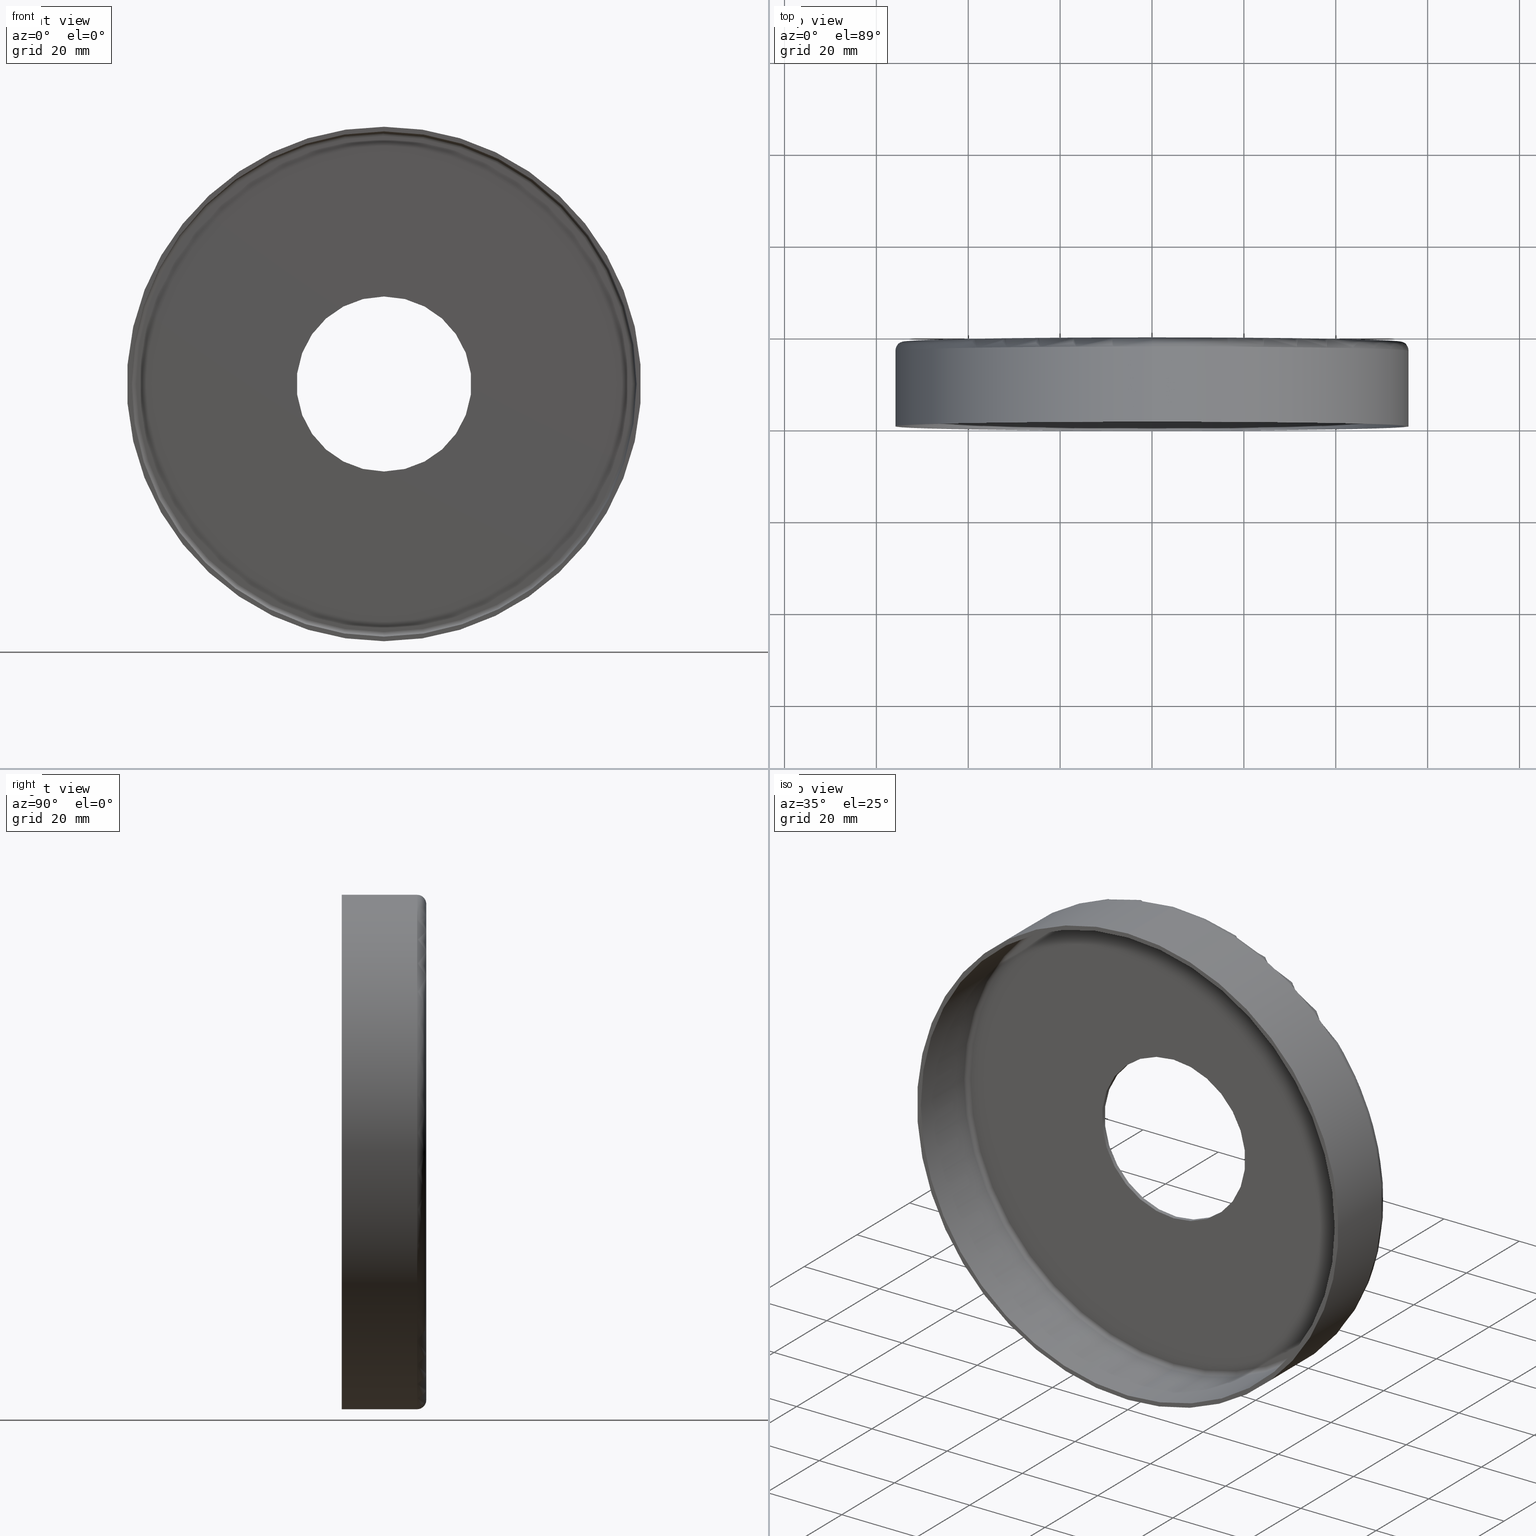
[diagram: canonical four-view strip — front | top / right | iso, engineering-drawing reading convention]
A machine part, canonical four-view strip (front | top / right | iso — engineering-drawing reading convention). The complete STEP part file that produces these views, byte-faithful:
ISO-10303-21;
HEADER;
FILE_DESCRIPTION (( 'STEP AP214' ),
    '1' );
FILE_NAME ('���. KRT511.STEP',
    '2014-06-03T10:32:17',
    ( '' ),
    ( '' ),
    'SwSTEP 2.0',
    'SolidWorks 2014',
    '' );
FILE_SCHEMA (( 'AUTOMOTIVE_DESIGN' ));
ENDSEC;

DATA;
#1 = DIRECTION ( 'NONE',  ( 0.0000000000000000000, 0.0000000000000000000, 1.000000000000000000 ) ) ;
#2 = EDGE_CURVE ( 'NONE', #162, #101, #78, .T. ) ;
#3 = FILL_AREA_STYLE ('',( #34 ) ) ;
#4 = DIRECTION ( 'NONE',  ( -1.000000000000000000, 0.0000000000000000000, 0.0000000000000000000 ) ) ;
#5 = ORIENTED_EDGE ( 'NONE', *, *, #18, .F. ) ;
#6 = VECTOR ( 'NONE', #133, 1000.000000000000000 ) ;
#7 = SURFACE_STYLE_USAGE ( .BOTH. , #255 ) ;
#8 = AXIS2_PLACEMENT_3D ( 'NONE', #95, #84, #377 ) ;
#9 = PRESENTATION_STYLE_ASSIGNMENT (( #7 ) ) ;
#10 = DIRECTION ( 'NONE',  ( 0.0000000000000000000, 1.000000000000000000, 0.0000000000000000000 ) ) ;
#11 = DIRECTION ( 'NONE',  ( 0.0000000000000000000, 0.0000000000000000000, 1.000000000000000000 ) ) ;
#12 = DIRECTION ( 'NONE',  ( 0.0000000000000000000, -0.0000000000000000000, 1.000000000000000000 ) ) ;
#13 = CIRCLE ( 'NONE', #47, 55.00000000000000700 ) ;
#14 = DIRECTION ( 'NONE',  ( 0.0000000000000000000, 0.0000000000000000000, 1.000000000000000000 ) ) ;
#15 = VERTEX_POINT ( 'NONE', #282 ) ;
#16 = DIRECTION ( 'NONE',  ( 0.0000000000000000000, 1.000000000000000000, 0.0000000000000000000 ) ) ;
#17 = APPLICATION_CONTEXT ( 'automotive_design' ) ;
#18 = EDGE_CURVE ( 'NONE', #182, #15, #235, .T. ) ;
#19 = ORIENTED_EDGE ( 'NONE', *, *, #143, .T. ) ;
#20 = VERTEX_POINT ( 'NONE', #274 ) ;
#21 = CIRCLE ( 'NONE', #205, 55.00000000000000700 ) ;
#22 = EDGE_LOOP ( 'NONE', ( #340, #261, #51, #141 ) ) ;
#23 = AXIS2_PLACEMENT_3D ( 'NONE', #256, #184, #62 ) ;
#24 = ORIENTED_EDGE ( 'NONE', *, *, #176, .T. ) ;
#25 = CIRCLE ( 'NONE', #267, 56.00000000000000700 ) ;
#26 = ORIENTED_EDGE ( 'NONE', *, *, #231, .F. ) ;
#27 = EDGE_CURVE ( 'NONE', #182, #277, #397, .T. ) ;
#28 = CARTESIAN_POINT ( 'NONE',  ( 0.0000000000000000000, 17.39999999999999900, 0.0000000000000000000 ) ) ;
#29 = CARTESIAN_POINT ( 'NONE',  ( 0.0000000000000000000, 0.0000000000000000000, 0.0000000000000000000 ) ) ;
#30 = FACE_OUTER_BOUND ( 'NONE', #175, .T. ) ;
#31 = ORIENTED_EDGE ( 'NONE', *, *, #236, .T. ) ;
#32 = CARTESIAN_POINT ( 'NONE',  ( 6.735557395310444200E-015, 18.39999999999999900, 55.00000000000000700 ) ) ;
#33 = DIRECTION ( 'NONE',  ( 1.000000000000000000, -0.0000000000000000000, 1.224646799147353200E-016 ) ) ;
#34 = FILL_AREA_STYLE_COLOUR ( '', #168 ) ;
#35 = DIRECTION ( 'NONE',  ( -0.0000000000000000000, 1.000000000000000000, -0.0000000000000000000 ) ) ;
#36 = CARTESIAN_POINT ( 'NONE',  ( 0.0000000000000000000, 0.0000000000000000000, 0.0000000000000000000 ) ) ;
#37 = AXIS2_PLACEMENT_3D ( 'NONE', #83, #215, #374 ) ;
#38 = CIRCLE ( 'NONE', #291, 1.000000000000000900 ) ;
#39 = VECTOR ( 'NONE', #89, 1000.000000000000000 ) ;
#40 = DIRECTION ( 'NONE',  ( 0.0000000000000000000, 0.0000000000000000000, 1.000000000000000000 ) ) ;
#41 = DIRECTION ( 'NONE',  ( -0.0000000000000000000, -1.000000000000000000, -0.0000000000000000000 ) ) ;
#42 = DIRECTION ( 'NONE',  ( 0.0000000000000000000, -0.0000000000000000000, 1.000000000000000000 ) ) ;
#43 = ORIENTED_EDGE ( 'NONE', *, *, #150, .F. ) ;
#44 = DIRECTION ( 'NONE',  ( 0.0000000000000000000, 1.000000000000000000, 0.0000000000000000000 ) ) ;
#45 = ORIENTED_EDGE ( 'NONE', *, *, #309, .T. ) ;
#46 = DIRECTION ( 'NONE',  ( 0.0000000000000000000, 0.0000000000000000000, 1.000000000000000000 ) ) ;
#47 = AXIS2_PLACEMENT_3D ( 'NONE', #290, #159, #338 ) ;
#48 = DIRECTION ( 'NONE',  ( 0.0000000000000000000, 1.000000000000000000, 0.0000000000000000000 ) ) ;
#49 = CIRCLE ( 'NONE', #271, 19.05000000000000100 ) ;
#50 = AXIS2_PLACEMENT_3D ( 'NONE', #127, #345, #154 ) ;
#51 = ORIENTED_EDGE ( 'NONE', *, *, #332, .T. ) ;
#52 = EDGE_CURVE ( 'NONE', #203, #293, #151, .T. ) ;
#53 = FACE_OUTER_BOUND ( 'NONE', #240, .T. ) ;
#54 = UNCERTAINTY_MEASURE_WITH_UNIT (LENGTH_MEASURE( 1.000000000000000100E-005 ), #252, 'distance_accuracy_value', 'NONE');
#55 = VECTOR ( 'NONE', #217, 1000.000000000000000 ) ;
#56 = AXIS2_PLACEMENT_3D ( 'NONE', #125, #10, #42 ) ;
#57 = ADVANCED_FACE ( 'NONE', ( #53 ), #191, .T. ) ;
#58 = ORIENTED_EDGE ( 'NONE', *, *, #236, .F. ) ;
#59 = CARTESIAN_POINT ( 'NONE',  ( 0.0000000000000000000, 18.39999999999999900, 19.05000000000000100 ) ) ;
#60 = EDGE_CURVE ( 'NONE', #20, #229, #373, .T. ) ;
#61 = VECTOR ( 'NONE', #259, 1000.000000000000000 ) ;
#62 = DIRECTION ( 'NONE',  ( 0.0000000000000000000, 0.0000000000000000000, -1.000000000000000000 ) ) ;
#63 = CARTESIAN_POINT ( 'NONE',  ( 2.332952152375708000E-015, 18.39999999999999900, -19.05000000000000100 ) ) ;
#64 =( NAMED_UNIT ( * ) SI_UNIT ( $, .STERADIAN. ) SOLID_ANGLE_UNIT ( ) );
#65 = AXIS2_PLACEMENT_3D ( 'NONE', #245, #129, #92 ) ;
#66 = LINE ( 'NONE', #289, #6 ) ;
#67 = VERTEX_POINT ( 'NONE', #394 ) ;
#68 = EDGE_CURVE ( 'NONE', #224, #273, #324, .T. ) ;
#69 = CARTESIAN_POINT ( 'NONE',  ( 6.674325055353075800E-015, 17.39999999999999900, -54.00000000000000700 ) ) ;
#70 = PLANE ( 'NONE',  #156 ) ;
#71 = DIRECTION ( 'NONE',  ( 0.0000000000000000000, 1.000000000000000000, 0.0000000000000000000 ) ) ;
#72 = CIRCLE ( 'NONE', #210, 55.00000000000000700 ) ;
#73 = AXIS2_PLACEMENT_3D ( 'NONE', #392, #337, #275 ) ;
#74 = EDGE_LOOP ( 'NONE', ( #367, #253 ) ) ;
#75 = LINE ( 'NONE', #322, #61 ) ;
#76 = FACE_OUTER_BOUND ( 'NONE', #298, .T. ) ;
#77 = AXIS2_PLACEMENT_3D ( 'NONE', #372, #376, #183 ) ;
#78 = CIRCLE ( 'NONE', #77, 55.00000000000000700 ) ;
#79 = PRODUCT_DEFINITION ( 'UNKNOWN', '', #286, #283 ) ;
#80 = ORIENTED_EDGE ( 'NONE', *, *, #328, .F. ) ;
#81 = ORIENTED_EDGE ( 'NONE', *, *, #332, .F. ) ;
#82 = CARTESIAN_POINT ( 'NONE',  ( 6.613092715395708300E-015, 16.39999999999999900, -54.00000000000000700 ) ) ;
#83 = CARTESIAN_POINT ( 'NONE',  ( 0.0000000000000000000, 18.39999999999999900, 0.0000000000000000000 ) ) ;
#84 = DIRECTION ( 'NONE',  ( 0.0000000000000000000, 1.000000000000000000, 0.0000000000000000000 ) ) ;
#85 = CARTESIAN_POINT ( 'NONE',  ( 0.0000000000000000000, 18.39999999999999900, 0.0000000000000000000 ) ) ;
#86 = FACE_OUTER_BOUND ( 'NONE', #233, .T. ) ;
#87 = CARTESIAN_POINT ( 'NONE',  ( 0.0000000000000000000, 16.39999999999999900, 0.0000000000000000000 ) ) ;
#88 = EDGE_LOOP ( 'NONE', ( #178, #327, #80, #204 ) ) ;
#89 = DIRECTION ( 'NONE',  ( -0.0000000000000000000, -1.000000000000000000, -0.0000000000000000000 ) ) ;
#90 = DIRECTION ( 'NONE',  ( -0.0000000000000000000, -1.000000000000000000, -0.0000000000000000000 ) ) ;
#91 = CARTESIAN_POINT ( 'NONE',  ( 0.0000000000000000000, 16.39999999999999900, -56.00000000000000700 ) ) ;
#92 = DIRECTION ( 'NONE',  ( 0.0000000000000000000, 0.0000000000000000000, 1.000000000000000000 ) ) ;
#93 = AXIS2_PLACEMENT_3D ( 'NONE', #220, #98, #352 ) ;
#94 = ORIENTED_EDGE ( 'NONE', *, *, #52, .F. ) ;
#95 = CARTESIAN_POINT ( 'NONE',  ( 0.0000000000000000000, 18.39999999999999900, 0.0000000000000000000 ) ) ;
#96 = CARTESIAN_POINT ( 'NONE',  ( 0.0000000000000000000, 16.39999999999999900, -55.00000000000000700 ) ) ;
#97 = EDGE_LOOP ( 'NONE', ( #354, #43, #24, #244 ) ) ;
#98 = DIRECTION ( 'NONE',  ( -0.0000000000000000000, -1.000000000000000000, -0.0000000000000000000 ) ) ;
#99 = PLANE ( 'NONE',  #300 ) ;
#100 = CYLINDRICAL_SURFACE ( 'NONE', #23, 55.00000000000000700 ) ;
#101 = VERTEX_POINT ( 'NONE', #118 ) ;
#102 = CARTESIAN_POINT ( 'NONE',  ( 0.0000000000000000000, 18.39999999999999900, 0.0000000000000000000 ) ) ;
#103 = APPLICATION_PROTOCOL_DEFINITION ( 'draft international standard', 'automotive_design', 1998, #299 ) ;
#104 = PRODUCT_DEFINITION_SHAPE ( 'NONE', 'NONE',  #79 ) ;
#105 = EDGE_CURVE ( 'NONE', #20, #248, #351, .T. ) ;
#106 = DIRECTION ( 'NONE',  ( 0.0000000000000000000, 0.0000000000000000000, 1.000000000000000000 ) ) ;
#107 = PRODUCT_CONTEXT ( 'NONE', #17, 'mechanical' ) ;
#108 = VERTEX_POINT ( 'NONE', #213 ) ;
#109 = AXIS2_PLACEMENT_3D ( 'NONE', #87, #199, #14 ) ;
#110 = MANIFOLD_SOLID_BREP ( '�����-��������1', #381 ) ;
#111 = ORIENTED_EDGE ( 'NONE', *, *, #312, .T. ) ;
#112 = EDGE_CURVE ( 'NONE', #20, #182, #212, .T. ) ;
#113 = ADVANCED_FACE ( 'NONE', ( #335 ), #145, .F. ) ;
#114 = FACE_OUTER_BOUND ( 'NONE', #331, .T. ) ;
#115 = AXIS2_PLACEMENT_3D ( 'NONE', #28, #242, #344 ) ;
#116 = ORIENTED_EDGE ( 'NONE', *, *, #328, .T. ) ;
#117 = ORIENTED_EDGE ( 'NONE', *, *, #112, .F. ) ;
#118 = CARTESIAN_POINT ( 'NONE',  ( 0.0000000000000000000, 0.0000000000000000000, -55.00000000000000700 ) ) ;
#119 = ORIENTED_EDGE ( 'NONE', *, *, #343, .T. ) ;
#120 = FILL_AREA_STYLE_COLOUR ( '', #272 ) ;
#121 =( NAMED_UNIT ( * ) PLANE_ANGLE_UNIT ( ) SI_UNIT ( $, .RADIAN. ) );
#122 = CARTESIAN_POINT ( 'NONE',  ( 6.858022075225179300E-015, 18.39999999999999900, 56.00000000000000700 ) ) ;
#123 = AXIS2_PLACEMENT_3D ( 'NONE', #385, #16, #46 ) ;
#124 = CARTESIAN_POINT ( 'NONE',  ( 0.0000000000000000000, 17.39999999999999900, 0.0000000000000000000 ) ) ;
#125 = CARTESIAN_POINT ( 'NONE',  ( 0.0000000000000000000, 17.39999999999999900, 0.0000000000000000000 ) ) ;
#126 = PRESENTATION_STYLE_ASSIGNMENT (( #266 ) ) ;
#127 = CARTESIAN_POINT ( 'NONE',  ( 0.0000000000000000000, 18.39999999999999900, 0.0000000000000000000 ) ) ;
#128 = CARTESIAN_POINT ( 'NONE',  ( 0.0000000000000000000, 16.39999999999999900, 0.0000000000000000000 ) ) ;
#129 = DIRECTION ( 'NONE',  ( 0.0000000000000000000, 1.000000000000000000, 0.0000000000000000000 ) ) ;
#130 = DIRECTION ( 'NONE',  ( -0.0000000000000000000, -1.000000000000000000, -0.0000000000000000000 ) ) ;
#131 = EDGE_LOOP ( 'NONE', ( #208, #295 ) ) ;
#132 = STYLED_ITEM ( 'NONE', ( #126 ), #239 ) ;
#133 = DIRECTION ( 'NONE',  ( -0.0000000000000000000, 1.000000000000000000, -0.0000000000000000000 ) ) ;
#134 = ORIENTED_EDGE ( 'NONE', *, *, #193, .T. ) ;
#135 = DIRECTION ( 'NONE',  ( 0.0000000000000000000, 1.000000000000000000, 0.0000000000000000000 ) ) ;
#136 = CARTESIAN_POINT ( 'NONE',  ( 0.0000000000000000000, 16.39999999999999900, 0.0000000000000000000 ) ) ;
#137 = CARTESIAN_POINT ( 'NONE',  ( 0.0000000000000000000, 0.0000000000000000000, 0.0000000000000000000 ) ) ;
#138 = EDGE_LOOP ( 'NONE', ( #134, #111 ) ) ;
#139 = FACE_OUTER_BOUND ( 'NONE', #306, .T. ) ;
#140 = PRESENTATION_LAYER_ASSIGNMENT (  '', '', ( #311 ) ) ;
#141 = ORIENTED_EDGE ( 'NONE', *, *, #68, .T. ) ;
#142 = VERTEX_POINT ( 'NONE', #96 ) ;
#143 = EDGE_CURVE ( 'NONE', #108, #142, #72, .T. ) ;
#144 = FACE_BOUND ( 'NONE', #138, .T. ) ;
#145 = CYLINDRICAL_SURFACE ( 'NONE', #93, 55.00000000000000700 ) ;
#146 = EDGE_CURVE ( 'NONE', #15, #248, #189, .T. ) ;
#147 = ORIENTED_EDGE ( 'NONE', *, *, #312, .F. ) ;
#148 = CARTESIAN_POINT ( 'NONE',  ( 0.0000000000000000000, 16.39999999999999900, 54.00000000000000700 ) ) ;
#149 = FACE_OUTER_BOUND ( 'NONE', #22, .T. ) ;
#150 = EDGE_CURVE ( 'NONE', #142, #108, #21, .T. ) ;
#151 = CIRCLE ( 'NONE', #37, 19.05000000000000100 ) ;
#152 = CARTESIAN_POINT ( 'NONE',  ( 6.858022075225179300E-015, 0.0000000000000000000, 56.00000000000000700 ) ) ;
#153 = DIRECTION ( 'NONE',  ( -0.0000000000000000000, -1.000000000000000000, -0.0000000000000000000 ) ) ;
#154 = DIRECTION ( 'NONE',  ( 0.0000000000000000000, 0.0000000000000000000, 1.000000000000000000 ) ) ;
#155 = DIRECTION ( 'NONE',  ( 0.0000000000000000000, 0.0000000000000000000, -1.000000000000000000 ) ) ;
#156 = AXIS2_PLACEMENT_3D ( 'NONE', #137, #160, #360 ) ;
#157 = CARTESIAN_POINT ( 'NONE',  ( 0.0000000000000000000, 18.39999999999999900, 0.0000000000000000000 ) ) ;
#158 = DIRECTION ( 'NONE',  ( 0.0000000000000000000, 0.0000000000000000000, 1.000000000000000000 ) ) ;
#159 = DIRECTION ( 'NONE',  ( 0.0000000000000000000, 1.000000000000000000, 0.0000000000000000000 ) ) ;
#160 = DIRECTION ( 'NONE',  ( 0.0000000000000000000, 1.000000000000000000, 0.0000000000000000000 ) ) ;
#161 = FACE_OUTER_BOUND ( 'NONE', #241, .T. ) ;
#162 = VERTEX_POINT ( 'NONE', #348 ) ;
#163 = AXIS2_PLACEMENT_3D ( 'NONE', #82, #209, #247 ) ;
#164 = ORIENTED_EDGE ( 'NONE', *, *, #171, .F. ) ;
#165 = UNCERTAINTY_MEASURE_WITH_UNIT (LENGTH_MEASURE( 1.000000000000000100E-005 ), #315, 'distance_accuracy_value', 'NONE');
#166 = CIRCLE ( 'NONE', #8, 19.05000000000000100 ) ;
#167 =( NAMED_UNIT ( * ) PLANE_ANGLE_UNIT ( ) SI_UNIT ( $, .RADIAN. ) );
#168 = COLOUR_RGB ( '',0.7921568627450980000, 0.8196078431372548800, 0.9333333333333333500 ) ;
#169 = EDGE_CURVE ( 'NONE', #182, #20, #25, .T. ) ;
#170 = ORIENTED_EDGE ( 'NONE', *, *, #112, .T. ) ;
#171 = EDGE_CURVE ( 'NONE', #67, #203, #66, .T. ) ;
#172 = LINE ( 'NONE', #398, #219 ) ;
#173 = ORIENTED_EDGE ( 'NONE', *, *, #231, .T. ) ;
#174 = ADVANCED_FACE ( 'NONE', ( #144, #76 ), #378, .F. ) ;
#175 = EDGE_LOOP ( 'NONE', ( #371, #119, #304, #214 ) ) ;
#176 = EDGE_CURVE ( 'NONE', #142, #101, #172, .T. ) ;
#177 = FACE_OUTER_BOUND ( 'NONE', #88, .T. ) ;
#178 = ORIENTED_EDGE ( 'NONE', *, *, #169, .F. ) ;
#179 = CARTESIAN_POINT ( 'NONE',  ( 0.0000000000000000000, 18.39999999999999900, -56.00000000000000700 ) ) ;
#180 = ADVANCED_FACE ( 'NONE', ( #30 ), #100, .F. ) ;
#181 = TOROIDAL_SURFACE ( 'NONE', #123, 54.00000000000000700, 1.000000000000000000 ) ;
#182 = VERTEX_POINT ( 'NONE', #91 ) ;
#183 = DIRECTION ( 'NONE',  ( 0.0000000000000000000, 0.0000000000000000000, 1.000000000000000000 ) ) ;
#184 = DIRECTION ( 'NONE',  ( -0.0000000000000000000, -1.000000000000000000, -0.0000000000000000000 ) ) ;
#185 = AXIS2_PLACEMENT_3D ( 'NONE', #254, #319, #250 ) ;
#186 = DIRECTION ( 'NONE',  ( 0.0000000000000000000, 0.0000000000000000000, -1.000000000000000000 ) ) ;
#187 = DIRECTION ( 'NONE',  ( 0.0000000000000000000, 1.000000000000000000, 0.0000000000000000000 ) ) ;
#188 = DIRECTION ( 'NONE',  ( 0.0000000000000000000, 0.0000000000000000000, 1.000000000000000000 ) ) ;
#189 = CIRCLE ( 'NONE', #388, 56.00000000000000700 ) ;
#190 = DIRECTION ( 'NONE',  ( -0.0000000000000000000, -1.000000000000000000, -0.0000000000000000000 ) ) ;
#191 = CYLINDRICAL_SURFACE ( 'NONE', #228, 56.00000000000000700 ) ;
#192 = CARTESIAN_POINT ( 'NONE',  ( 0.0000000000000000000, 16.39999999999999900, 0.0000000000000000000 ) ) ;
#193 = EDGE_CURVE ( 'NONE', #285, #67, #49, .T. ) ;
#194 = EDGE_LOOP ( 'NONE', ( #333, #94 ) ) ;
#195 = DIRECTION ( 'NONE',  ( -0.0000000000000000000, 1.000000000000000000, -0.0000000000000000000 ) ) ;
#196 = EDGE_CURVE ( 'NONE', #277, #229, #201, .T. ) ;
#197 = EDGE_LOOP ( 'NONE', ( #116, #366 ) ) ;
#198 = DIRECTION ( 'NONE',  ( 0.0000000000000000000, 1.000000000000000000, 0.0000000000000000000 ) ) ;
#199 = DIRECTION ( 'NONE',  ( 0.0000000000000000000, 1.000000000000000000, 0.0000000000000000000 ) ) ;
#200 = DIRECTION ( 'NONE',  ( 0.0000000000000000000, 0.0000000000000000000, 1.000000000000000000 ) ) ;
#201 = CIRCLE ( 'NONE', #395, 54.00000000000000700 ) ;
#202 = AXIS2_PLACEMENT_3D ( 'NONE', #382, #195, #11 ) ;
#203 = VERTEX_POINT ( 'NONE', #63 ) ;
#204 = ORIENTED_EDGE ( 'NONE', *, *, #60, .F. ) ;
#205 = AXIS2_PLACEMENT_3D ( 'NONE', #192, #221, #155 ) ;
#206 = ORIENTED_EDGE ( 'NONE', *, *, #171, .T. ) ;
#207 = ADVANCED_FACE ( 'NONE', ( #334, #356 ), #99, .T. ) ;
#208 = ORIENTED_EDGE ( 'NONE', *, *, #325, .T. ) ;
#209 = DIRECTION ( 'NONE',  ( 1.000000000000000000, -0.0000000000000000000, 1.224646799147353200E-016 ) ) ;
#210 = AXIS2_PLACEMENT_3D ( 'NONE', #284, #153, #292 ) ;
#211 = ADVANCED_FACE ( 'NONE', ( #139 ), #181, .F. ) ;
#212 = CIRCLE ( 'NONE', #185, 56.00000000000000700 ) ;
#213 = CARTESIAN_POINT ( 'NONE',  ( 6.735557395310444200E-015, 16.39999999999999900, 55.00000000000000700 ) ) ;
#214 = ORIENTED_EDGE ( 'NONE', *, *, #176, .F. ) ;
#215 = DIRECTION ( 'NONE',  ( 0.0000000000000000000, 1.000000000000000000, 0.0000000000000000000 ) ) ;
#216 = AXIS2_PLACEMENT_3D ( 'NONE', #124, #249, #188 ) ;
#217 = DIRECTION ( 'NONE',  ( -0.0000000000000000000, -1.000000000000000000, -0.0000000000000000000 ) ) ;
#218 = ORIENTED_EDGE ( 'NONE', *, *, #68, .F. ) ;
#219 = VECTOR ( 'NONE', #130, 1000.000000000000000 ) ;
#220 = CARTESIAN_POINT ( 'NONE',  ( 0.0000000000000000000, 18.39999999999999900, 0.0000000000000000000 ) ) ;
#221 = DIRECTION ( 'NONE',  ( -0.0000000000000000000, -1.000000000000000000, -0.0000000000000000000 ) ) ;
#222 = AXIS2_PLACEMENT_3D ( 'NONE', #393, #350, #1 ) ;
#223 =( NAMED_UNIT ( * ) PLANE_ANGLE_UNIT ( ) SI_UNIT ( $, .RADIAN. ) );
#224 = VERTEX_POINT ( 'NONE', #296 ) ;
#225 = ORIENTED_EDGE ( 'NONE', *, *, #146, .T. ) ;
#226 = ADVANCED_FACE ( 'NONE', ( #177 ), #260, .T. ) ;
#227 = TOROIDAL_SURFACE ( 'NONE', #109, 54.00000000000000700, 1.000000000000000000 ) ;
#228 = AXIS2_PLACEMENT_3D ( 'NONE', #85, #314, #336 ) ;
#229 = VERTEX_POINT ( 'NONE', #358 ) ;
#230 = ORIENTED_EDGE ( 'NONE', *, *, #196, .F. ) ;
#231 = EDGE_CURVE ( 'NONE', #285, #293, #75, .T. ) ;
#232 = AXIS2_PLACEMENT_3D ( 'NONE', #148, #4, #316 ) ;
#233 = EDGE_LOOP ( 'NONE', ( #147, #206, #391, #26 ) ) ;
#234 = FACE_OUTER_BOUND ( 'NONE', #379, .T. ) ;
#235 = LINE ( 'NONE', #179, #39 ) ;
#236 = EDGE_CURVE ( 'NONE', #273, #224, #269, .T. ) ;
#237 = AXIS2_PLACEMENT_3D ( 'NONE', #29, #263, #301 ) ;
#238 = ADVANCED_FACE ( 'NONE', ( #339, #349 ), #70, .F. ) ;
#239 = ADVANCED_BREP_SHAPE_REPRESENTATION ( '�. KRT511', ( #110, #237 ), #362 ) ;
#240 = EDGE_LOOP ( 'NONE', ( #279, #389, #264, #5 ) ) ;
#241 = EDGE_LOOP ( 'NONE', ( #164, #270, #173, #347 ) ) ;
#242 = DIRECTION ( 'NONE',  ( 0.0000000000000000000, 1.000000000000000000, 0.0000000000000000000 ) ) ;
#243 = ADVANCED_FACE ( 'NONE', ( #86 ), #265, .F. ) ;
#244 = ORIENTED_EDGE ( 'NONE', *, *, #2, .F. ) ;
#245 = CARTESIAN_POINT ( 'NONE',  ( 0.0000000000000000000, 16.39999999999999900, 0.0000000000000000000 ) ) ;
#246 = CYLINDRICAL_SURFACE ( 'NONE', #305, 56.00000000000000700 ) ;
#247 = DIRECTION ( 'NONE',  ( 1.224646799147353500E-016, 0.0000000000000000000, -1.000000000000000000 ) ) ;
#248 = VERTEX_POINT ( 'NONE', #152 ) ;
#249 = DIRECTION ( 'NONE',  ( 0.0000000000000000000, 1.000000000000000000, 0.0000000000000000000 ) ) ;
#250 = DIRECTION ( 'NONE',  ( 0.0000000000000000000, 0.0000000000000000000, 1.000000000000000000 ) ) ;
#251 = DIRECTION ( 'NONE',  ( 0.0000000000000000000, 0.0000000000000000000, 1.000000000000000000 ) ) ;
#252 =( LENGTH_UNIT ( ) NAMED_UNIT ( * ) SI_UNIT ( .MILLI., .METRE. ) );
#253 = ORIENTED_EDGE ( 'NONE', *, *, #294, .F. ) ;
#254 = CARTESIAN_POINT ( 'NONE',  ( 0.0000000000000000000, 16.39999999999999900, 0.0000000000000000000 ) ) ;
#255 = SURFACE_SIDE_STYLE ('',( #364 ) ) ;
#256 = CARTESIAN_POINT ( 'NONE',  ( 0.0000000000000000000, 18.39999999999999900, 0.0000000000000000000 ) ) ;
#257 =( GEOMETRIC_REPRESENTATION_CONTEXT ( 3 ) GLOBAL_UNCERTAINTY_ASSIGNED_CONTEXT ( ( #54 ) ) GLOBAL_UNIT_ASSIGNED_CONTEXT ( ( #252, #223, #64 ) ) REPRESENTATION_CONTEXT ( 'NONE', 'WORKASPACE' ) );
#258 = PRESENTATION_LAYER_ASSIGNMENT (  '', '', ( #132 ) ) ;
#259 = DIRECTION ( 'NONE',  ( -0.0000000000000000000, 1.000000000000000000, -0.0000000000000000000 ) ) ;
#260 = TOROIDAL_SURFACE ( 'NONE', #280, 54.00000000000000700, 2.000000000000000000 ) ;
#261 = ORIENTED_EDGE ( 'NONE', *, *, #150, .T. ) ;
#262 = CARTESIAN_POINT ( 'NONE',  ( 0.0000000000000000000, 17.39999999999999900, 0.0000000000000000000 ) ) ;
#263 = DIRECTION ( 'NONE',  ( 0.0000000000000000000, 0.0000000000000000000, 1.000000000000000000 ) ) ;
#264 = ORIENTED_EDGE ( 'NONE', *, *, #294, .T. ) ;
#265 = CYLINDRICAL_SURFACE ( 'NONE', #202, 19.05000000000000100 ) ;
#266 = SURFACE_STYLE_USAGE ( .BOTH. , #302 ) ;
#267 = AXIS2_PLACEMENT_3D ( 'NONE', #128, #190, #317 ) ;
#268 = VECTOR ( 'NONE', #41, 1000.000000000000000 ) ;
#269 = CIRCLE ( 'NONE', #370, 54.00000000000000700 ) ;
#270 = ORIENTED_EDGE ( 'NONE', *, *, #193, .F. ) ;
#271 = AXIS2_PLACEMENT_3D ( 'NONE', #355, #135, #158 ) ;
#272 = COLOUR_RGB ( '',0.7921568627450980000, 0.8196078431372548800, 0.9333333333333333500 ) ;
#273 = VERTEX_POINT ( 'NONE', #69 ) ;
#274 = CARTESIAN_POINT ( 'NONE',  ( 6.858022075225179300E-015, 16.39999999999999900, 56.00000000000000700 ) ) ;
#275 = DIRECTION ( 'NONE',  ( 0.0000000000000000000, 0.0000000000000000000, 1.000000000000000000 ) ) ;
#276 = EDGE_CURVE ( 'NONE', #293, #203, #166, .T. ) ;
#277 = VERTEX_POINT ( 'NONE', #297 ) ;
#278 = ADVANCED_FACE ( 'NONE', ( #161 ), #369, .F. ) ;
#279 = ORIENTED_EDGE ( 'NONE', *, *, #169, .T. ) ;
#280 = AXIS2_PLACEMENT_3D ( 'NONE', #136, #48, #200 ) ;
#281 = CARTESIAN_POINT ( 'NONE',  ( 0.0000000000000000000, 18.39999999999999900, 0.0000000000000000000 ) ) ;
#282 = CARTESIAN_POINT ( 'NONE',  ( 0.0000000000000000000, 0.0000000000000000000, -56.00000000000000700 ) ) ;
#283 = PRODUCT_DEFINITION_CONTEXT ( 'detailed design', #299, 'design' ) ;
#284 = CARTESIAN_POINT ( 'NONE',  ( 0.0000000000000000000, 16.39999999999999900, 0.0000000000000000000 ) ) ;
#285 = VERTEX_POINT ( 'NONE', #384 ) ;
#286 = PRODUCT_DEFINITION_FORMATION_WITH_SPECIFIED_SOURCE ( 'ANY', '', #368, .NOT_KNOWN. ) ;
#287 = CARTESIAN_POINT ( 'NONE',  ( 0.0000000000000000000, 0.0000000000000000000, 0.0000000000000000000 ) ) ;
#288 = LINE ( 'NONE', #32, #55 ) ;
#289 = CARTESIAN_POINT ( 'NONE',  ( 2.332952152375708000E-015, 0.0000000000000000000, -19.05000000000000100 ) ) ;
#290 = CARTESIAN_POINT ( 'NONE',  ( 0.0000000000000000000, 0.0000000000000000000, 0.0000000000000000000 ) ) ;
#291 = AXIS2_PLACEMENT_3D ( 'NONE', #380, #33, #342 ) ;
#292 = DIRECTION ( 'NONE',  ( 0.0000000000000000000, 0.0000000000000000000, -1.000000000000000000 ) ) ;
#293 = VERTEX_POINT ( 'NONE', #59 ) ;
#294 = EDGE_CURVE ( 'NONE', #248, #15, #386, .T. ) ;
#295 = ORIENTED_EDGE ( 'NONE', *, *, #2, .T. ) ;
#296 = CARTESIAN_POINT ( 'NONE',  ( 0.0000000000000000000, 17.39999999999999900, 54.00000000000000700 ) ) ;
#297 = CARTESIAN_POINT ( 'NONE',  ( 6.735557395310443400E-015, 18.39999999999999900, -54.00000000000000700 ) ) ;
#298 = EDGE_LOOP ( 'NONE', ( #218, #58 ) ) ;
#299 = APPLICATION_CONTEXT ( 'automotive_design' ) ;
#300 = AXIS2_PLACEMENT_3D ( 'NONE', #157, #198, #12 ) ;
#301 = DIRECTION ( 'NONE',  ( 1.000000000000000000, 0.0000000000000000000, 0.0000000000000000000 ) ) ;
#302 = SURFACE_SIDE_STYLE ('',( #329 ) ) ;
#303 = ORIENTED_EDGE ( 'NONE', *, *, #105, .F. ) ;
#304 = ORIENTED_EDGE ( 'NONE', *, *, #325, .F. ) ;
#305 = AXIS2_PLACEMENT_3D ( 'NONE', #281, #90, #186 ) ;
#306 = EDGE_LOOP ( 'NONE', ( #19, #45, #31, #81 ) ) ;
#307 = MECHANICAL_DESIGN_GEOMETRIC_PRESENTATION_REPRESENTATION (  '', ( #132 ), #323 ) ;
#308 = CIRCLE ( 'NONE', #216, 19.05000000000000100 ) ;
#309 = EDGE_CURVE ( 'NONE', #142, #273, #38, .T. ) ;
#310 = ADVANCED_FACE ( 'NONE', ( #234 ), #246, .T. ) ;
#311 = STYLED_ITEM ( 'NONE', ( #9 ), #110 ) ;
#312 = EDGE_CURVE ( 'NONE', #67, #285, #308, .T. ) ;
#313 = ORIENTED_EDGE ( 'NONE', *, *, #18, .T. ) ;
#314 = DIRECTION ( 'NONE',  ( -0.0000000000000000000, -1.000000000000000000, -0.0000000000000000000 ) ) ;
#315 =( LENGTH_UNIT ( ) NAMED_UNIT ( * ) SI_UNIT ( .MILLI., .METRE. ) );
#316 = DIRECTION ( 'NONE',  ( 0.0000000000000000000, 0.0000000000000000000, 1.000000000000000000 ) ) ;
#317 = DIRECTION ( 'NONE',  ( 0.0000000000000000000, 0.0000000000000000000, 1.000000000000000000 ) ) ;
#318 = AXIS2_PLACEMENT_3D ( 'NONE', #287, #35, #251 ) ;
#319 = DIRECTION ( 'NONE',  ( -0.0000000000000000000, -1.000000000000000000, -0.0000000000000000000 ) ) ;
#320 = UNCERTAINTY_MEASURE_WITH_UNIT (LENGTH_MEASURE( 1.000000000000000100E-005 ), #359, 'distance_accuracy_value', 'NONE');
#321 = ORIENTED_EDGE ( 'NONE', *, *, #60, .T. ) ;
#322 = CARTESIAN_POINT ( 'NONE',  ( 0.0000000000000000000, 0.0000000000000000000, 19.05000000000000100 ) ) ;
#323 =( GEOMETRIC_REPRESENTATION_CONTEXT ( 3 ) GLOBAL_UNCERTAINTY_ASSIGNED_CONTEXT ( ( #320 ) ) GLOBAL_UNIT_ASSIGNED_CONTEXT ( ( #359, #167, #387 ) ) REPRESENTATION_CONTEXT ( 'NONE', 'WORKASPACE' ) );
#324 = CIRCLE ( 'NONE', #115, 54.00000000000000700 ) ;
#325 = EDGE_CURVE ( 'NONE', #101, #162, #13, .T. ) ;
#326 = PRODUCT_RELATED_PRODUCT_CATEGORY ( 'part', '', ( #368 ) ) ;
#327 = ORIENTED_EDGE ( 'NONE', *, *, #27, .T. ) ;
#328 = EDGE_CURVE ( 'NONE', #229, #277, #363, .T. ) ;
#329 = SURFACE_STYLE_FILL_AREA ( #361 ) ;
#330 = CIRCLE ( 'NONE', #232, 1.000000000000000900 ) ;
#331 = EDGE_LOOP ( 'NONE', ( #357, #117, #321, #230 ) ) ;
#332 = EDGE_CURVE ( 'NONE', #108, #224, #330, .T. ) ;
#333 = ORIENTED_EDGE ( 'NONE', *, *, #276, .F. ) ;
#334 = FACE_BOUND ( 'NONE', #194, .T. ) ;
#335 = FACE_OUTER_BOUND ( 'NONE', #97, .T. ) ;
#336 = DIRECTION ( 'NONE',  ( 0.0000000000000000000, 0.0000000000000000000, -1.000000000000000000 ) ) ;
#337 = DIRECTION ( 'NONE',  ( -1.000000000000000000, 0.0000000000000000000, 0.0000000000000000000 ) ) ;
#338 = DIRECTION ( 'NONE',  ( 0.0000000000000000000, 0.0000000000000000000, 1.000000000000000000 ) ) ;
#339 = FACE_BOUND ( 'NONE', #131, .T. ) ;
#340 = ORIENTED_EDGE ( 'NONE', *, *, #309, .F. ) ;
#341 =( NAMED_UNIT ( * ) SI_UNIT ( $, .STERADIAN. ) SOLID_ANGLE_UNIT ( ) );
#342 = DIRECTION ( 'NONE',  ( 1.224646799147349500E-016, 0.0000000000000000000, -1.000000000000000000 ) ) ;
#343 = EDGE_CURVE ( 'NONE', #108, #162, #288, .T. ) ;
#344 = DIRECTION ( 'NONE',  ( 0.0000000000000000000, 0.0000000000000000000, 1.000000000000000000 ) ) ;
#345 = DIRECTION ( 'NONE',  ( 0.0000000000000000000, 1.000000000000000000, 0.0000000000000000000 ) ) ;
#346 = SHAPE_DEFINITION_REPRESENTATION ( #104, #239 ) ;
#347 = ORIENTED_EDGE ( 'NONE', *, *, #276, .T. ) ;
#348 = CARTESIAN_POINT ( 'NONE',  ( 6.735557395310444200E-015, 0.0000000000000000000, 55.00000000000000700 ) ) ;
#349 = FACE_OUTER_BOUND ( 'NONE', #74, .T. ) ;
#350 = DIRECTION ( 'NONE',  ( 0.0000000000000000000, 1.000000000000000000, 0.0000000000000000000 ) ) ;
#351 = LINE ( 'NONE', #122, #268 ) ;
#352 = DIRECTION ( 'NONE',  ( 0.0000000000000000000, 0.0000000000000000000, -1.000000000000000000 ) ) ;
#353 = MECHANICAL_DESIGN_GEOMETRIC_PRESENTATION_REPRESENTATION (  '', ( #311 ), #257 ) ;
#354 = ORIENTED_EDGE ( 'NONE', *, *, #343, .F. ) ;
#355 = CARTESIAN_POINT ( 'NONE',  ( 0.0000000000000000000, 17.39999999999999900, 0.0000000000000000000 ) ) ;
#356 = FACE_OUTER_BOUND ( 'NONE', #197, .T. ) ;
#357 = ORIENTED_EDGE ( 'NONE', *, *, #27, .F. ) ;
#358 = CARTESIAN_POINT ( 'NONE',  ( 0.0000000000000000000, 18.39999999999999900, 54.00000000000000700 ) ) ;
#359 =( LENGTH_UNIT ( ) NAMED_UNIT ( * ) SI_UNIT ( .MILLI., .METRE. ) );
#360 = DIRECTION ( 'NONE',  ( 0.0000000000000000000, -0.0000000000000000000, 1.000000000000000000 ) ) ;
#361 = FILL_AREA_STYLE ('',( #120 ) ) ;
#362 =( GEOMETRIC_REPRESENTATION_CONTEXT ( 3 ) GLOBAL_UNCERTAINTY_ASSIGNED_CONTEXT ( ( #165 ) ) GLOBAL_UNIT_ASSIGNED_CONTEXT ( ( #315, #121, #341 ) ) REPRESENTATION_CONTEXT ( 'NONE', 'WORKASPACE' ) );
#363 = CIRCLE ( 'NONE', #50, 54.00000000000000700 ) ;
#364 = SURFACE_STYLE_FILL_AREA ( #3 ) ;
#365 = APPLICATION_PROTOCOL_DEFINITION ( 'draft international standard', 'automotive_design', 1998, #17 ) ;
#366 = ORIENTED_EDGE ( 'NONE', *, *, #196, .T. ) ;
#367 = ORIENTED_EDGE ( 'NONE', *, *, #146, .F. ) ;
#368 = PRODUCT ( '���. KRT511', '���. KRT511', '', ( #107 ) ) ;
#369 = CYLINDRICAL_SURFACE ( 'NONE', #318, 19.05000000000000100 ) ;
#370 = AXIS2_PLACEMENT_3D ( 'NONE', #262, #71, #106 ) ;
#371 = ORIENTED_EDGE ( 'NONE', *, *, #143, .F. ) ;
#372 = CARTESIAN_POINT ( 'NONE',  ( 0.0000000000000000000, 0.0000000000000000000, 0.0000000000000000000 ) ) ;
#373 = CIRCLE ( 'NONE', #73, 2.000000000000001800 ) ;
#374 = DIRECTION ( 'NONE',  ( 0.0000000000000000000, 0.0000000000000000000, 1.000000000000000000 ) ) ;
#375 = ADVANCED_FACE ( 'NONE', ( #114 ), #396, .T. ) ;
#376 = DIRECTION ( 'NONE',  ( 0.0000000000000000000, 1.000000000000000000, 0.0000000000000000000 ) ) ;
#377 = DIRECTION ( 'NONE',  ( 0.0000000000000000000, 0.0000000000000000000, 1.000000000000000000 ) ) ;
#378 = PLANE ( 'NONE',  #56 ) ;
#379 = EDGE_LOOP ( 'NONE', ( #303, #170, #313, #225 ) ) ;
#380 = CARTESIAN_POINT ( 'NONE',  ( 6.613092715395708300E-015, 16.39999999999999900, -54.00000000000000700 ) ) ;
#381 = CLOSED_SHELL ( 'NONE', ( #243, #211, #180, #226, #57, #310, #207, #238, #375, #113, #174, #390, #278 ) ) ;
#382 = CARTESIAN_POINT ( 'NONE',  ( 0.0000000000000000000, 0.0000000000000000000, 0.0000000000000000000 ) ) ;
#383 = DIRECTION ( 'NONE',  ( 0.0000000000000000000, 0.0000000000000000000, 1.000000000000000000 ) ) ;
#384 = CARTESIAN_POINT ( 'NONE',  ( 0.0000000000000000000, 17.39999999999999900, 19.05000000000000100 ) ) ;
#385 = CARTESIAN_POINT ( 'NONE',  ( 0.0000000000000000000, 16.39999999999999900, 0.0000000000000000000 ) ) ;
#386 = CIRCLE ( 'NONE', #222, 56.00000000000000700 ) ;
#387 =( NAMED_UNIT ( * ) SI_UNIT ( $, .STERADIAN. ) SOLID_ANGLE_UNIT ( ) );
#388 = AXIS2_PLACEMENT_3D ( 'NONE', #36, #187, #40 ) ;
#389 = ORIENTED_EDGE ( 'NONE', *, *, #105, .T. ) ;
#390 = ADVANCED_FACE ( 'NONE', ( #149 ), #227, .F. ) ;
#391 = ORIENTED_EDGE ( 'NONE', *, *, #52, .T. ) ;
#392 = CARTESIAN_POINT ( 'NONE',  ( 0.0000000000000000000, 16.39999999999999900, 54.00000000000000700 ) ) ;
#393 = CARTESIAN_POINT ( 'NONE',  ( 0.0000000000000000000, 0.0000000000000000000, 0.0000000000000000000 ) ) ;
#394 = CARTESIAN_POINT ( 'NONE',  ( 2.332952152375708000E-015, 17.39999999999999900, -19.05000000000000100 ) ) ;
#395 = AXIS2_PLACEMENT_3D ( 'NONE', #102, #44, #383 ) ;
#396 = TOROIDAL_SURFACE ( 'NONE', #65, 54.00000000000000700, 2.000000000000000000 ) ;
#397 = CIRCLE ( 'NONE', #163, 2.000000000000001800 ) ;
#398 = CARTESIAN_POINT ( 'NONE',  ( 0.0000000000000000000, 18.39999999999999900, -55.00000000000000700 ) ) ;
ENDSEC;
END-ISO-10303-21;
